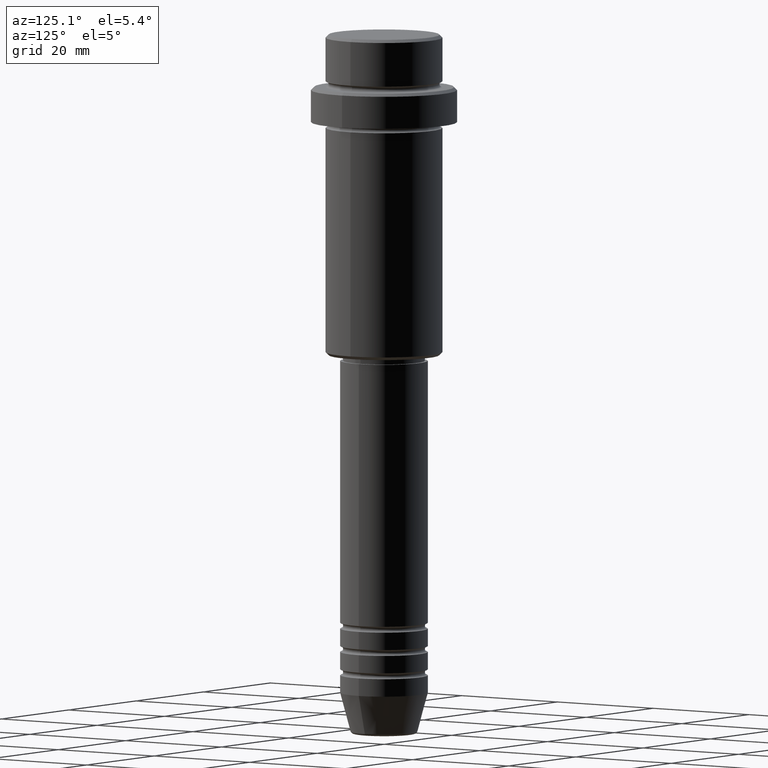
[diagram: clean part render]
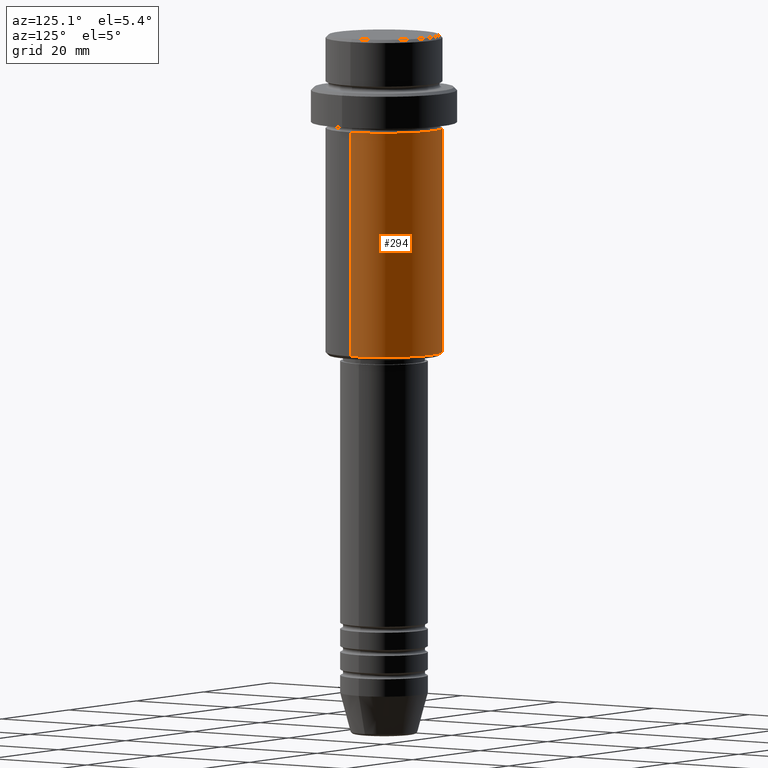
[diagram: same view with one face highlighted and labeled with its STEP entity id]
A machine part, auxiliary view. The second image highlights one B-rep face of the part: STEP entity #294.
In plain terms, the highlighted cylindrical surface (partial cylindrical patch) has radius 10 mm, axis along (-0, -0, 1).
Its self-contained STEP definition (entity closure, byte-faithful):
#42 = LINE ( 'NONE', #1348, #1249 ) ;
#53 = CARTESIAN_POINT ( 'NONE',  ( -9.999999999999998224, 1.224646799147353059E-15, 0.000000000000000000 ) ) ;
#63 = CARTESIAN_POINT ( 'NONE',  ( 9.999999999999998224, 0.000000000000000000, -16.00000000000000000 ) ) ;
#65 = ORIENTED_EDGE ( 'NONE', *, *, #1006, .F. ) ;
#72 = FACE_OUTER_BOUND ( 'NONE', #222, .T. ) ;
#115 = VERTEX_POINT ( 'NONE', #607 ) ;
#140 = VERTEX_POINT ( 'NONE', #63 ) ;
#158 = DIRECTION ( 'NONE',  ( -0.000000000000000000, -0.000000000000000000, 1.000000000000000000 ) ) ;
#167 = DIRECTION ( 'NONE',  ( -0.000000000000000000, -0.000000000000000000, 1.000000000000000000 ) ) ;
#172 = AXIS2_PLACEMENT_3D ( 'NONE', #315, #425, #948 ) ;
#194 = VERTEX_POINT ( 'NONE', #1055 ) ;
#222 = EDGE_LOOP ( 'NONE', ( #533, #472, #65, #470 ) ) ;
#273 = LINE ( 'NONE', #53, #478 ) ;
#294 = ADVANCED_FACE ( 'NONE', ( #72 ), #514, .T. ) ;
#315 = CARTESIAN_POINT ( 'NONE',  ( 0.000000000000000000, 0.000000000000000000, 0.000000000000000000 ) ) ;
#334 = CARTESIAN_POINT ( 'NONE',  ( 0.000000000000000000, 0.000000000000000000, -16.00000000000000000 ) ) ;
#402 = CARTESIAN_POINT ( 'NONE',  ( -9.999999999999998224, 1.224646799147353059E-15, -16.00000000000000000 ) ) ;
#425 = DIRECTION ( 'NONE',  ( -0.000000000000000000, -0.000000000000000000, 1.000000000000000000 ) ) ;
#470 = ORIENTED_EDGE ( 'NONE', *, *, #1243, .F. ) ;
#472 = ORIENTED_EDGE ( 'NONE', *, *, #651, .T. ) ;
#474 = DIRECTION ( 'NONE',  ( -0.000000000000000000, -0.000000000000000000, 1.000000000000000000 ) ) ;
#478 = VECTOR ( 'NONE', #474, 1000.000000000000000 ) ;
#514 = CYLINDRICAL_SURFACE ( 'NONE', #172, 9.999999999999998224 ) ;
#533 = ORIENTED_EDGE ( 'NONE', *, *, #742, .T. ) ;
#553 = DIRECTION ( 'NONE',  ( 1.000000000000000000, 0.000000000000000000, 0.000000000000000000 ) ) ;
#597 = CARTESIAN_POINT ( 'NONE',  ( 0.000000000000000000, 0.000000000000000000, -54.49999999999999289 ) ) ;
#607 = CARTESIAN_POINT ( 'NONE',  ( 9.999999999999998224, 0.000000000000000000, -54.49999999999999289 ) ) ;
#644 = AXIS2_PLACEMENT_3D ( 'NONE', #597, #158, #1024 ) ;
#651 = EDGE_CURVE ( 'NONE', #194, #1291, #273, .T. ) ;
#699 = CIRCLE ( 'NONE', #995, 9.999999999999998224 ) ;
#742 = EDGE_CURVE ( 'NONE', #115, #194, #1117, .T. ) ;
#948 = DIRECTION ( 'NONE',  ( 1.000000000000000000, 0.000000000000000000, 0.000000000000000000 ) ) ;
#995 = AXIS2_PLACEMENT_3D ( 'NONE', #334, #1206, #553 ) ;
#1006 = EDGE_CURVE ( 'NONE', #140, #1291, #699, .T. ) ;
#1024 = DIRECTION ( 'NONE',  ( -1.000000000000000000, 0.000000000000000000, 0.000000000000000000 ) ) ;
#1055 = CARTESIAN_POINT ( 'NONE',  ( -9.999999999999998224, 1.224646799147353059E-15, -54.49999999999999289 ) ) ;
#1117 = CIRCLE ( 'NONE', #644, 9.999999999999998224 ) ;
#1206 = DIRECTION ( 'NONE',  ( -0.000000000000000000, -0.000000000000000000, 1.000000000000000000 ) ) ;
#1243 = EDGE_CURVE ( 'NONE', #115, #140, #42, .T. ) ;
#1249 = VECTOR ( 'NONE', #167, 1000.000000000000000 ) ;
#1291 = VERTEX_POINT ( 'NONE', #402 ) ;
#1348 = CARTESIAN_POINT ( 'NONE',  ( 9.999999999999998224, 0.000000000000000000, 0.000000000000000000 ) ) ;